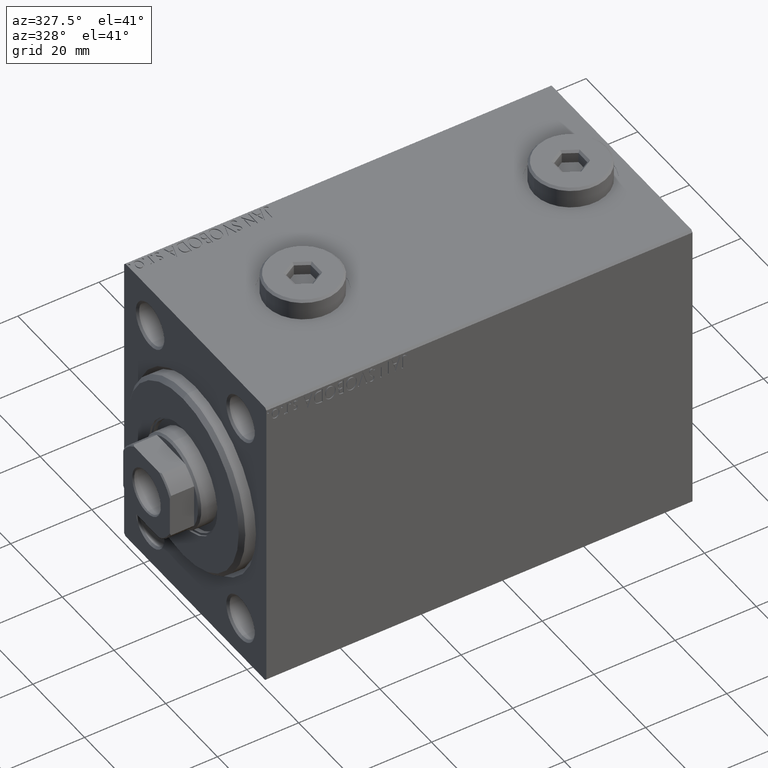
[diagram: clean part render]
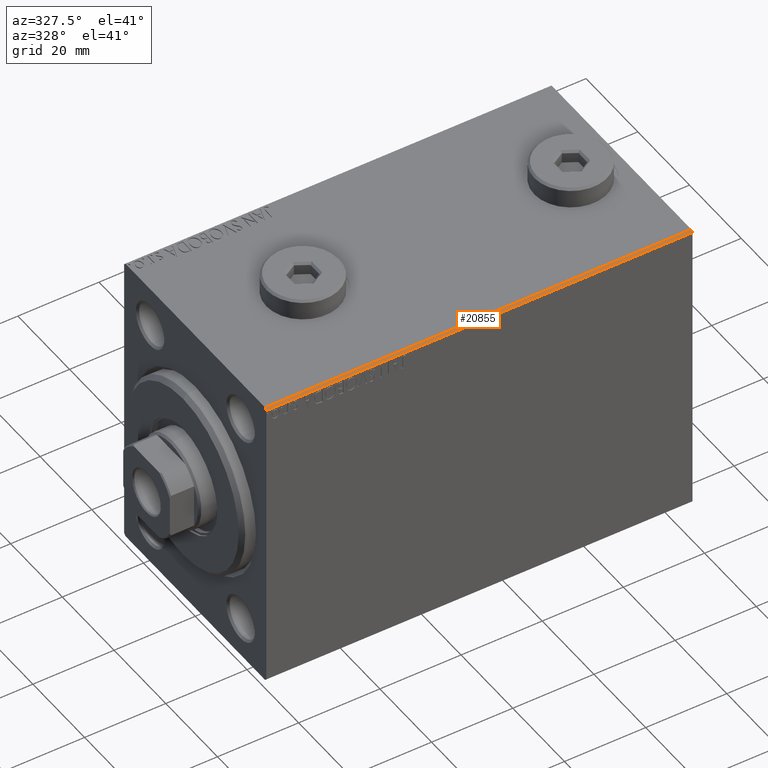
[diagram: same view with one face highlighted and labeled with its STEP entity id]
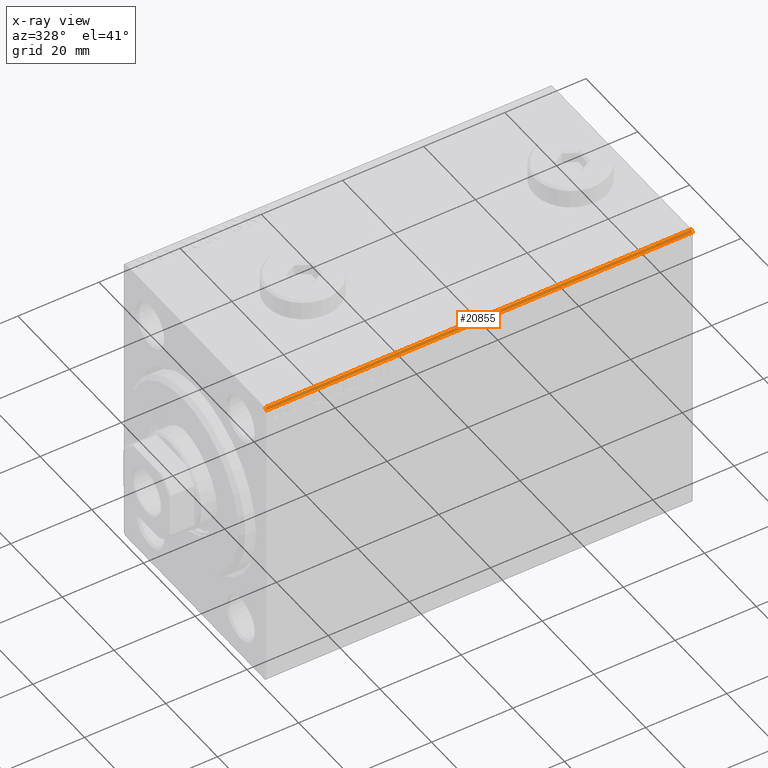
[diagram: x-ray of the same camera — body ghosted, the highlighted face saturated]
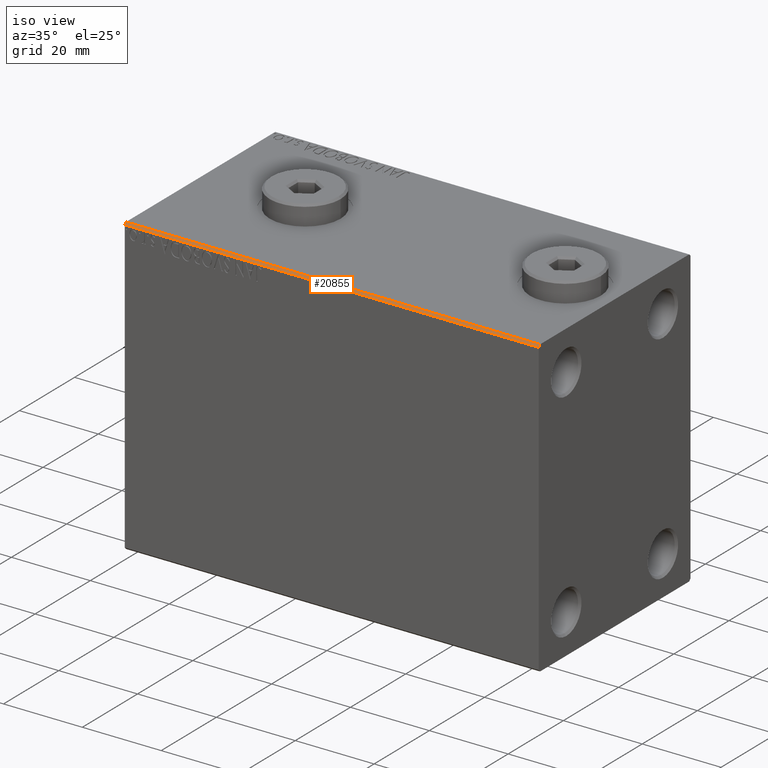
[diagram: same view with one face highlighted and labeled with its STEP entity id]
A machine part, auxiliary view. The second image highlights one B-rep face of the part: STEP entity #20855.
The next image is the same camera in x-ray: the body ghosted, the highlighted face saturated — about 0% of this face is hidden behind the body in this view.
A second angle (iso view) of the same face is appended — the face is thin or edge-on in the first view.
In plain terms, the highlighted planar face has unit normal (0, 0.7071, -0.7071).
Its self-contained STEP definition (entity closure, byte-faithful):
#885 = PLANE ( 'NONE',  #27565 ) ;
#3653 = DIRECTION ( 'NONE',  ( -1.000000000000000000, 0.000000000000000000, 0.000000000000000000 ) ) ;
#8538 = DIRECTION ( 'NONE',  ( 1.000000000000000000, 0.000000000000000000, 0.000000000000000000 ) ) ;
#9929 = VERTEX_POINT ( 'NONE', #34391 ) ;
#14304 = DIRECTION ( 'NONE',  ( -1.000000000000000000, 0.000000000000000000, 0.000000000000000000 ) ) ;
#19172 = DIRECTION ( 'NONE',  ( -0.000000000000000000, 0.7071067811865474617, 0.7071067811865474617 ) ) ;
#20165 = VERTEX_POINT ( 'NONE', #40811 ) ;
#20441 = VERTEX_POINT ( 'NONE', #39195 ) ;
#20505 = DIRECTION ( 'NONE',  ( 0.000000000000000000, -0.7071067811865474617, -0.7071067811865474617 ) ) ;
#20855 = ADVANCED_FACE ( 'NONE', ( #25109 ), #885, .F. ) ;
#21649 = CARTESIAN_POINT ( 'NONE',  ( 105.0000000000000000, -27.49999999999999645, 36.99999999999998579 ) ) ;
#23286 = LINE ( 'NONE', #26746, #23392 ) ;
#23392 = VECTOR ( 'NONE', #8538, 1000.000000000000000 ) ;
#23544 = ORIENTED_EDGE ( 'NONE', *, *, #36442, .F. ) ;
#25109 = FACE_OUTER_BOUND ( 'NONE', #44719, .T. ) ;
#25417 = EDGE_CURVE ( 'NONE', #20165, #31752, #26075, .T. ) ;
#25637 = EDGE_CURVE ( 'NONE', #9929, #20165, #43302, .T. ) ;
#26075 = LINE ( 'NONE', #40114, #35736 ) ;
#26746 = CARTESIAN_POINT ( 'NONE',  ( 105.0000000000000000, -26.99999999999999645, 37.49999999999998579 ) ) ;
#27565 = AXIS2_PLACEMENT_3D ( 'NONE', #21649, #35695, #3653 ) ;
#27634 = CARTESIAN_POINT ( 'NONE',  ( 105.0000000000000000, -32.24999999999999289, 32.24999999999999289 ) ) ;
#30662 = ORIENTED_EDGE ( 'NONE', *, *, #25417, .F. ) ;
#31396 = EDGE_CURVE ( 'NONE', #31752, #20441, #23286, .T. ) ;
#31752 = VERTEX_POINT ( 'NONE', #42116 ) ;
#34141 = ORIENTED_EDGE ( 'NONE', *, *, #31396, .F. ) ;
#34391 = CARTESIAN_POINT ( 'NONE',  ( 105.0000000000000000, -27.49999999999999645, 36.99999999999998579 ) ) ;
#35506 = CARTESIAN_POINT ( 'NONE',  ( 105.0000000000000000, -27.49999999999999645, 36.99999999999998579 ) ) ;
#35695 = DIRECTION ( 'NONE',  ( 0.000000000000000000, 0.7071067811865475727, -0.7071067811865475727 ) ) ;
#35736 = VECTOR ( 'NONE', #19172, 1000.000000000000114 ) ;
#36442 = EDGE_CURVE ( 'NONE', #20441, #9929, #37992, .T. ) ;
#36509 = VECTOR ( 'NONE', #14304, 1000.000000000000000 ) ;
#37815 = ORIENTED_EDGE ( 'NONE', *, *, #25637, .F. ) ;
#37992 = LINE ( 'NONE', #27634, #41169 ) ;
#39195 = CARTESIAN_POINT ( 'NONE',  ( 105.0000000000000000, -26.99999999999999645, 37.49999999999998579 ) ) ;
#40114 = CARTESIAN_POINT ( 'NONE',  ( 0.000000000000000000, -27.49999999999999645, 36.99999999999998579 ) ) ;
#40811 = CARTESIAN_POINT ( 'NONE',  ( 0.000000000000000000, -27.49999999999999645, 36.99999999999998579 ) ) ;
#41169 = VECTOR ( 'NONE', #20505, 1000.000000000000114 ) ;
#42116 = CARTESIAN_POINT ( 'NONE',  ( 0.000000000000000000, -26.99999999999999645, 37.49999999999998579 ) ) ;
#43302 = LINE ( 'NONE', #35506, #36509 ) ;
#44719 = EDGE_LOOP ( 'NONE', ( #23544, #34141, #30662, #37815 ) ) ;